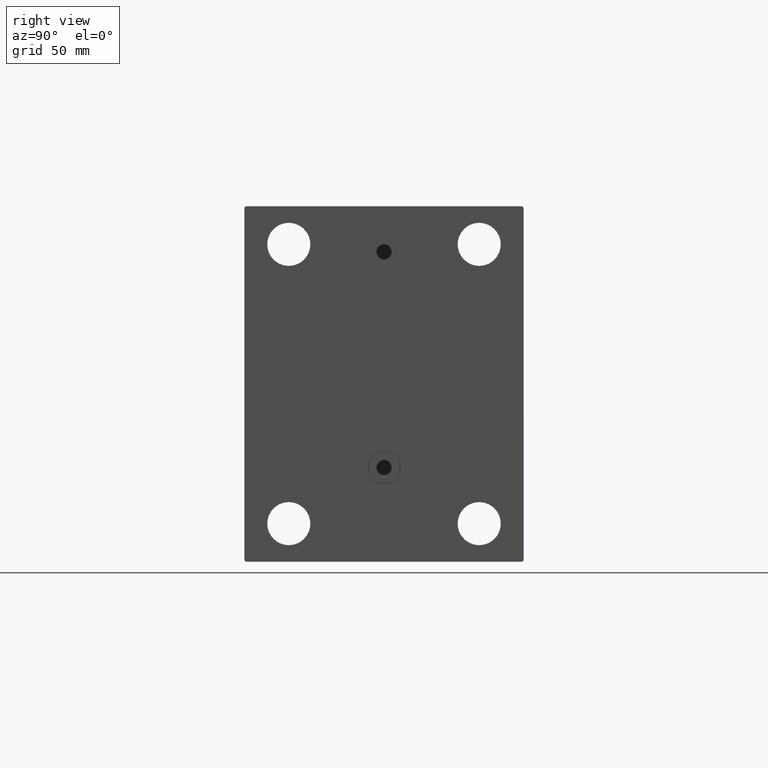
[diagram: clean part render]
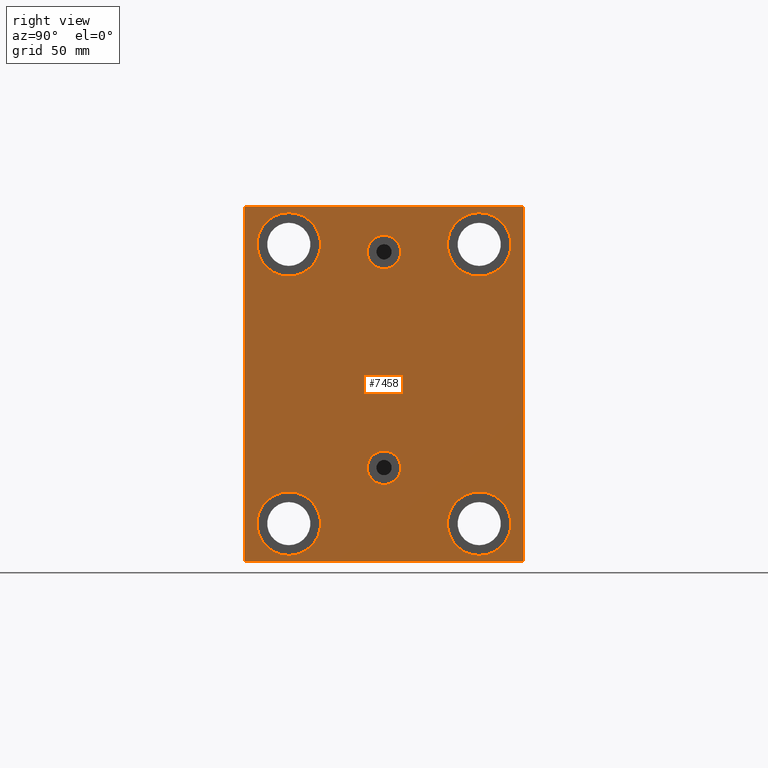
[diagram: same view with one face highlighted and labeled with its STEP entity id]
A machine part, right view. The second image highlights one B-rep face of the part: STEP entity #7458.
In plain terms, the highlighted planar face has unit normal (1, 0, 0).
Its self-contained STEP definition (entity closure, byte-faithful):
#299 = VERTEX_POINT ( 'NONE', #28000 ) ;
#378 = FACE_BOUND ( 'NONE', #36481, .T. ) ;
#712 = VECTOR ( 'NONE', #45357, 1000.000000000000114 ) ;
#807 = EDGE_LOOP ( 'NONE', ( #40828, #12639 ) ) ;
#876 = CARTESIAN_POINT ( 'NONE',  ( 103.0000000000000000, -8.775864102628257178E-15, 52.00000000000000711 ) ) ;
#1072 = CARTESIAN_POINT ( 'NONE',  ( 103.0000000000000000, -55.00000000000000711, -69.50000000000007105 ) ) ;
#1345 = DIRECTION ( 'NONE',  ( 0.000000000000000000, 0.000000000000000000, -1.000000000000000000 ) ) ;
#1649 = CARTESIAN_POINT ( 'NONE',  ( 103.0000000000000000, 4.847152031025224453E-15, -26.41999999999999815 ) ) ;
#1872 = DIRECTION ( 'NONE',  ( 0.000000000000000000, -1.000000000000000000, -1.261617073437677999E-16 ) ) ;
#2001 = CARTESIAN_POINT ( 'NONE',  ( 103.0000000000000000, -54.50000000000000711, 69.99999999999998579 ) ) ;
#2330 = LINE ( 'NONE', #41751, #5775 ) ;
#2692 = DIRECTION ( 'NONE',  ( -1.000000000000000000, -0.000000000000000000, -0.000000000000000000 ) ) ;
#3398 = VERTEX_POINT ( 'NONE', #20951 ) ;
#3400 = EDGE_CURVE ( 'NONE', #13750, #8129, #38199, .T. ) ;
#3896 = ORIENTED_EDGE ( 'NONE', *, *, #15774, .T. ) ;
#3977 = EDGE_CURVE ( 'NONE', #16445, #15224, #26927, .T. ) ;
#4312 = AXIS2_PLACEMENT_3D ( 'NONE', #23176, #41334, #37800 ) ;
#4329 = VERTEX_POINT ( 'NONE', #40580 ) ;
#4568 = VERTEX_POINT ( 'NONE', #7257 ) ;
#5054 = EDGE_CURVE ( 'NONE', #20735, #33629, #14883, .T. ) ;
#5775 = VECTOR ( 'NONE', #1872, 1000.000000000000000 ) ;
#5872 = EDGE_CURVE ( 'NONE', #46063, #13750, #41167, .T. ) ;
#5948 = LINE ( 'NONE', #20339, #712 ) ;
#6213 = DIRECTION ( 'NONE',  ( -1.000000000000000000, -0.000000000000000000, -0.000000000000000000 ) ) ;
#6584 = EDGE_CURVE ( 'NONE', #12955, #46063, #20947, .T. ) ;
#6807 = EDGE_LOOP ( 'NONE', ( #46152, #37003 ) ) ;
#7257 = CARTESIAN_POINT ( 'NONE',  ( 103.0000000000000000, 54.99999999999999289, 69.50000000000000000 ) ) ;
#7458 = ADVANCED_FACE ( 'NONE', ( #19265, #7704, #44060, #378, #40744, #33663, #22106 ), #11476, .T. ) ;
#7535 = VECTOR ( 'NONE', #41176, 1000.000000000000000 ) ;
#7704 = FACE_BOUND ( 'NONE', #6807, .T. ) ;
#8002 = DIRECTION ( 'NONE',  ( -1.000000000000000000, -0.000000000000000000, -0.000000000000000000 ) ) ;
#8129 = VERTEX_POINT ( 'NONE', #45348 ) ;
#8156 = EDGE_CURVE ( 'NONE', #22186, #26375, #17242, .T. ) ;
#8381 = EDGE_LOOP ( 'NONE', ( #33533, #17150 ) ) ;
#8872 = CARTESIAN_POINT ( 'NONE',  ( 103.0000000000000000, 54.49999999999999289, 70.00000000000000000 ) ) ;
#9074 = DIRECTION ( 'NONE',  ( 0.000000000000000000, 0.000000000000000000, -1.000000000000000000 ) ) ;
#9550 = CARTESIAN_POINT ( 'NONE',  ( 103.0000000000000000, -37.50000000000000711, 55.00000000000000711 ) ) ;
#9631 = CARTESIAN_POINT ( 'NONE',  ( 103.0000000000000000, -62.24999999999927525, -62.25000000000100897 ) ) ;
#9761 = VERTEX_POINT ( 'NONE', #37740 ) ;
#10073 = DIRECTION ( 'NONE',  ( 0.000000000000000000, -0.7071067811865474617, -0.7071067811865474617 ) ) ;
#10166 = EDGE_CURVE ( 'NONE', #31460, #10713, #35358, .T. ) ;
#10713 = VERTEX_POINT ( 'NONE', #40293 ) ;
#11326 = DIRECTION ( 'NONE',  ( -1.000000000000000000, -0.000000000000000000, -0.000000000000000000 ) ) ;
#11476 = PLANE ( 'NONE',  #23251 ) ;
#11500 = EDGE_CURVE ( 'NONE', #8129, #4329, #37411, .T. ) ;
#11704 = CARTESIAN_POINT ( 'NONE',  ( 103.0000000000000000, 4.041334437186266200E-15, -39.58000000000000540 ) ) ;
#11717 = CARTESIAN_POINT ( 'NONE',  ( 103.0000000000000000, 0.000000000000000000, 0.000000000000000000 ) ) ;
#12548 = DIRECTION ( 'NONE',  ( -1.000000000000000000, -0.000000000000000000, -0.000000000000000000 ) ) ;
#12606 = CARTESIAN_POINT ( 'NONE',  ( 103.0000000000000000, 37.49999999999997868, -54.99999999999999289 ) ) ;
#12629 = ORIENTED_EDGE ( 'NONE', *, *, #41185, .T. ) ;
#12639 = ORIENTED_EDGE ( 'NONE', *, *, #3977, .T. ) ;
#12860 = CIRCLE ( 'NONE', #18131, 12.49999999999999645 ) ;
#12955 = VERTEX_POINT ( 'NONE', #2001 ) ;
#13102 = ORIENTED_EDGE ( 'NONE', *, *, #40693, .T. ) ;
#13206 = EDGE_LOOP ( 'NONE', ( #20354, #39520 ) ) ;
#13329 = EDGE_CURVE ( 'NONE', #42731, #40438, #14367, .T. ) ;
#13538 = DIRECTION ( 'NONE',  ( 0.000000000000000000, 0.000000000000000000, 1.000000000000000000 ) ) ;
#13750 = VERTEX_POINT ( 'NONE', #1072 ) ;
#14312 = EDGE_CURVE ( 'NONE', #4329, #299, #5948, .T. ) ;
#14367 = CIRCLE ( 'NONE', #17403, 6.580000000000002736 ) ;
#14883 = CIRCLE ( 'NONE', #23958, 6.580000000000002736 ) ;
#15224 = VERTEX_POINT ( 'NONE', #43673 ) ;
#15626 = EDGE_CURVE ( 'NONE', #33629, #20735, #42233, .T. ) ;
#15774 = EDGE_CURVE ( 'NONE', #3398, #9761, #27155, .T. ) ;
#16159 = CIRCLE ( 'NONE', #38033, 12.49999999999999645 ) ;
#16445 = VERTEX_POINT ( 'NONE', #34163 ) ;
#16642 = DIRECTION ( 'NONE',  ( -1.000000000000000000, -0.000000000000000000, -0.000000000000000000 ) ) ;
#16943 = EDGE_CURVE ( 'NONE', #15224, #16445, #12860, .T. ) ;
#17091 = DIRECTION ( 'NONE',  ( 1.000000000000000000, 0.000000000000000000, -0.000000000000000000 ) ) ;
#17150 = ORIENTED_EDGE ( 'NONE', *, *, #27022, .T. ) ;
#17242 = CIRCLE ( 'NONE', #21021, 12.49999999999999645 ) ;
#17403 = AXIS2_PLACEMENT_3D ( 'NONE', #39855, #35856, #17684 ) ;
#17596 = ORIENTED_EDGE ( 'NONE', *, *, #5872, .T. ) ;
#17631 = CARTESIAN_POINT ( 'NONE',  ( 103.0000000000000000, -62.25000000000000000, 62.25000000000000000 ) ) ;
#17684 = DIRECTION ( 'NONE',  ( 0.000000000000000000, 0.000000000000000000, 1.000000000000000000 ) ) ;
#17879 = CARTESIAN_POINT ( 'NONE',  ( 103.0000000000000000, 37.50000000000000711, 67.50000000000000000 ) ) ;
#18131 = AXIS2_PLACEMENT_3D ( 'NONE', #35034, #16642, #45431 ) ;
#18619 = VECTOR ( 'NONE', #38421, 999.9999999999998863 ) ;
#18833 = DIRECTION ( 'NONE',  ( 1.000000000000000000, 0.000000000000000000, 0.000000000000000000 ) ) ;
#19082 = AXIS2_PLACEMENT_3D ( 'NONE', #21932, #8002, #36573 ) ;
#19265 = FACE_BOUND ( 'NONE', #13206, .T. ) ;
#19624 = CARTESIAN_POINT ( 'NONE',  ( 103.0000000000000000, 37.50000000000000711, 55.00000000000000711 ) ) ;
#19957 = CIRCLE ( 'NONE', #46333, 12.49999999999999645 ) ;
#19961 = CARTESIAN_POINT ( 'NONE',  ( 103.0000000000000000, -8.775864102628257178E-15, 45.42000000000000171 ) ) ;
#20216 = VECTOR ( 'NONE', #10073, 1000.000000000000114 ) ;
#20339 = CARTESIAN_POINT ( 'NONE',  ( 103.0000000000000000, 62.25000000000000711, -62.25000000000000711 ) ) ;
#20354 = ORIENTED_EDGE ( 'NONE', *, *, #15626, .F. ) ;
#20735 = VERTEX_POINT ( 'NONE', #38775 ) ;
#20947 = LINE ( 'NONE', #17631, #20216 ) ;
#20951 = CARTESIAN_POINT ( 'NONE',  ( 103.0000000000000000, -37.50000000000000711, 42.50000000000000711 ) ) ;
#21021 = AXIS2_PLACEMENT_3D ( 'NONE', #19624, #12548, #34020 ) ;
#21315 = ORIENTED_EDGE ( 'NONE', *, *, #46034, .T. ) ;
#21668 = LINE ( 'NONE', #32054, #44241 ) ;
#21932 = CARTESIAN_POINT ( 'NONE',  ( 103.0000000000000000, 37.50000000000000711, 55.00000000000000711 ) ) ;
#22009 = ORIENTED_EDGE ( 'NONE', *, *, #46167, .T. ) ;
#22106 = FACE_OUTER_BOUND ( 'NONE', #33915, .T. ) ;
#22186 = VERTEX_POINT ( 'NONE', #31109 ) ;
#22338 = AXIS2_PLACEMENT_3D ( 'NONE', #33047, #17091, #13538 ) ;
#22666 = CARTESIAN_POINT ( 'NONE',  ( 103.0000000000000000, 37.49999999999997868, -54.99999999999999289 ) ) ;
#22784 = CARTESIAN_POINT ( 'NONE',  ( 103.0000000000000000, -55.00000000000000711, -70.00000000000002842 ) ) ;
#23176 = CARTESIAN_POINT ( 'NONE',  ( 103.0000000000000000, -37.50000000000002132, -54.99999999999999289 ) ) ;
#23225 = VECTOR ( 'NONE', #9074, 1000.000000000000000 ) ;
#23251 = AXIS2_PLACEMENT_3D ( 'NONE', #11717, #26122, #36510 ) ;
#23877 = VERTEX_POINT ( 'NONE', #8872 ) ;
#23958 = AXIS2_PLACEMENT_3D ( 'NONE', #25839, #41162, #44244 ) ;
#24388 = DIRECTION ( 'NONE',  ( 0.000000000000000000, 0.000000000000000000, 1.000000000000000000 ) ) ;
#24568 = EDGE_CURVE ( 'NONE', #26375, #22186, #29620, .T. ) ;
#25839 = CARTESIAN_POINT ( 'NONE',  ( 103.0000000000000000, -8.775864102628257178E-15, 52.00000000000000711 ) ) ;
#26122 = DIRECTION ( 'NONE',  ( 1.000000000000000000, 0.000000000000000000, 0.000000000000000000 ) ) ;
#26342 = AXIS2_PLACEMENT_3D ( 'NONE', #12606, #6213, #24388 ) ;
#26375 = VERTEX_POINT ( 'NONE', #17879 ) ;
#26927 = CIRCLE ( 'NONE', #4312, 12.49999999999999645 ) ;
#27022 = EDGE_CURVE ( 'NONE', #10713, #31460, #16159, .T. ) ;
#27155 = CIRCLE ( 'NONE', #27924, 12.49999999999999645 ) ;
#27311 = DIRECTION ( 'NONE',  ( -1.000000000000000000, -0.000000000000000000, -0.000000000000000000 ) ) ;
#27595 = CIRCLE ( 'NONE', #22338, 6.580000000000002736 ) ;
#27924 = AXIS2_PLACEMENT_3D ( 'NONE', #31532, #27311, #41937 ) ;
#28000 = CARTESIAN_POINT ( 'NONE',  ( 103.0000000000000000, 55.00000000000002132, -69.50000000000000000 ) ) ;
#28427 = LINE ( 'NONE', #42829, #32741 ) ;
#28799 = DIRECTION ( 'NONE',  ( 0.000000000000000000, 0.000000000000000000, 1.000000000000000000 ) ) ;
#29620 = CIRCLE ( 'NONE', #19082, 12.49999999999999645 ) ;
#31109 = CARTESIAN_POINT ( 'NONE',  ( 103.0000000000000000, 37.50000000000000711, 42.50000000000000711 ) ) ;
#31460 = VERTEX_POINT ( 'NONE', #46520 ) ;
#31532 = CARTESIAN_POINT ( 'NONE',  ( 103.0000000000000000, -37.50000000000000711, 55.00000000000000711 ) ) ;
#31960 = DIRECTION ( 'NONE',  ( 0.000000000000000000, -1.982541115402065110E-16, 1.000000000000000000 ) ) ;
#32054 = CARTESIAN_POINT ( 'NONE',  ( 103.0000000000000000, 62.24999999999999289, 62.24999999999999289 ) ) ;
#32328 = EDGE_CURVE ( 'NONE', #40438, #42731, #27595, .T. ) ;
#32335 = ORIENTED_EDGE ( 'NONE', *, *, #8156, .T. ) ;
#32741 = VECTOR ( 'NONE', #31960, 1000.000000000000000 ) ;
#33047 = CARTESIAN_POINT ( 'NONE',  ( 103.0000000000000000, 4.041334437186266200E-15, -33.00000000000000000 ) ) ;
#33533 = ORIENTED_EDGE ( 'NONE', *, *, #10166, .T. ) ;
#33629 = VERTEX_POINT ( 'NONE', #19961 ) ;
#33663 = FACE_BOUND ( 'NONE', #807, .T. ) ;
#33915 = EDGE_LOOP ( 'NONE', ( #21315, #45920, #17596, #44767, #37572, #46629, #13102, #22009 ) ) ;
#34020 = DIRECTION ( 'NONE',  ( 0.000000000000000000, 0.000000000000000000, 1.000000000000000000 ) ) ;
#34163 = CARTESIAN_POINT ( 'NONE',  ( 103.0000000000000000, -37.50000000000002132, -42.49999999999999289 ) ) ;
#35034 = CARTESIAN_POINT ( 'NONE',  ( 103.0000000000000000, -37.50000000000002132, -54.99999999999999289 ) ) ;
#35358 = CIRCLE ( 'NONE', #26342, 12.49999999999999645 ) ;
#35856 = DIRECTION ( 'NONE',  ( 1.000000000000000000, 0.000000000000000000, -0.000000000000000000 ) ) ;
#36481 = EDGE_LOOP ( 'NONE', ( #3896, #12629 ) ) ;
#36510 = DIRECTION ( 'NONE',  ( 0.000000000000000000, 0.000000000000000000, -1.000000000000000000 ) ) ;
#36573 = DIRECTION ( 'NONE',  ( 0.000000000000000000, 0.000000000000000000, 1.000000000000000000 ) ) ;
#36802 = ORIENTED_EDGE ( 'NONE', *, *, #24568, .T. ) ;
#37003 = ORIENTED_EDGE ( 'NONE', *, *, #13329, .F. ) ;
#37411 = LINE ( 'NONE', #22784, #7535 ) ;
#37526 = CARTESIAN_POINT ( 'NONE',  ( 103.0000000000000000, -55.00000000000000711, 69.49999999999998579 ) ) ;
#37572 = ORIENTED_EDGE ( 'NONE', *, *, #11500, .T. ) ;
#37740 = CARTESIAN_POINT ( 'NONE',  ( 103.0000000000000000, -37.50000000000000711, 67.50000000000000000 ) ) ;
#37800 = DIRECTION ( 'NONE',  ( 0.000000000000000000, 0.000000000000000000, 1.000000000000000000 ) ) ;
#38033 = AXIS2_PLACEMENT_3D ( 'NONE', #22666, #11326, #28799 ) ;
#38199 = LINE ( 'NONE', #9631, #18619 ) ;
#38421 = DIRECTION ( 'NONE',  ( -0.000000000000000000, 0.7071067811865574537, -0.7071067811865376918 ) ) ;
#38775 = CARTESIAN_POINT ( 'NONE',  ( 103.0000000000000000, -7.970046508789298136E-15, 58.58000000000000540 ) ) ;
#39520 = ORIENTED_EDGE ( 'NONE', *, *, #5054, .F. ) ;
#39855 = CARTESIAN_POINT ( 'NONE',  ( 103.0000000000000000, 4.041334437186266200E-15, -33.00000000000000000 ) ) ;
#40293 = CARTESIAN_POINT ( 'NONE',  ( 103.0000000000000000, 37.49999999999997868, -42.49999999999999289 ) ) ;
#40438 = VERTEX_POINT ( 'NONE', #11704 ) ;
#40473 = CARTESIAN_POINT ( 'NONE',  ( 103.0000000000000000, -55.00000000000000711, 69.99999999999998579 ) ) ;
#40580 = CARTESIAN_POINT ( 'NONE',  ( 103.0000000000000000, 54.50000000000002132, -70.00000000000000000 ) ) ;
#40693 = EDGE_CURVE ( 'NONE', #299, #4568, #28427, .T. ) ;
#40744 = FACE_BOUND ( 'NONE', #43261, .T. ) ;
#40828 = ORIENTED_EDGE ( 'NONE', *, *, #16943, .T. ) ;
#41162 = DIRECTION ( 'NONE',  ( 1.000000000000000000, 0.000000000000000000, 0.000000000000000000 ) ) ;
#41167 = LINE ( 'NONE', #40473, #23225 ) ;
#41176 = DIRECTION ( 'NONE',  ( 0.000000000000000000, 1.000000000000000000, 2.523234146875355012E-16 ) ) ;
#41185 = EDGE_CURVE ( 'NONE', #9761, #3398, #19957, .T. ) ;
#41334 = DIRECTION ( 'NONE',  ( -1.000000000000000000, -0.000000000000000000, -0.000000000000000000 ) ) ;
#41751 = CARTESIAN_POINT ( 'NONE',  ( 103.0000000000000000, 54.99999999999999289, 70.00000000000000000 ) ) ;
#41937 = DIRECTION ( 'NONE',  ( 0.000000000000000000, 0.000000000000000000, 1.000000000000000000 ) ) ;
#42110 = DIRECTION ( 'NONE',  ( 0.000000000000000000, 0.000000000000000000, 1.000000000000000000 ) ) ;
#42233 = CIRCLE ( 'NONE', #45237, 6.580000000000002736 ) ;
#42731 = VERTEX_POINT ( 'NONE', #1649 ) ;
#42829 = CARTESIAN_POINT ( 'NONE',  ( 103.0000000000000000, 55.00000000000002132, -70.00000000000000000 ) ) ;
#43261 = EDGE_LOOP ( 'NONE', ( #32335, #36802 ) ) ;
#43673 = CARTESIAN_POINT ( 'NONE',  ( 103.0000000000000000, -37.50000000000002132, -67.49999999999998579 ) ) ;
#44060 = FACE_BOUND ( 'NONE', #8381, .T. ) ;
#44241 = VECTOR ( 'NONE', #46448, 1000.000000000000114 ) ;
#44244 = DIRECTION ( 'NONE',  ( 0.000000000000000000, 0.000000000000000000, -1.000000000000000000 ) ) ;
#44767 = ORIENTED_EDGE ( 'NONE', *, *, #3400, .T. ) ;
#45237 = AXIS2_PLACEMENT_3D ( 'NONE', #876, #18833, #1345 ) ;
#45348 = CARTESIAN_POINT ( 'NONE',  ( 103.0000000000000000, -54.50000000000003553, -70.00000000000002842 ) ) ;
#45357 = DIRECTION ( 'NONE',  ( -0.000000000000000000, 0.7071067811865474617, 0.7071067811865474617 ) ) ;
#45431 = DIRECTION ( 'NONE',  ( 0.000000000000000000, 0.000000000000000000, 1.000000000000000000 ) ) ;
#45920 = ORIENTED_EDGE ( 'NONE', *, *, #6584, .T. ) ;
#46034 = EDGE_CURVE ( 'NONE', #23877, #12955, #2330, .T. ) ;
#46063 = VERTEX_POINT ( 'NONE', #37526 ) ;
#46152 = ORIENTED_EDGE ( 'NONE', *, *, #32328, .F. ) ;
#46167 = EDGE_CURVE ( 'NONE', #4568, #23877, #21668, .T. ) ;
#46333 = AXIS2_PLACEMENT_3D ( 'NONE', #9550, #2692, #42110 ) ;
#46448 = DIRECTION ( 'NONE',  ( -0.000000000000000000, -0.7071067811865474617, 0.7071067811865474617 ) ) ;
#46520 = CARTESIAN_POINT ( 'NONE',  ( 103.0000000000000000, 37.49999999999997868, -67.49999999999998579 ) ) ;
#46629 = ORIENTED_EDGE ( 'NONE', *, *, #14312, .T. ) ;